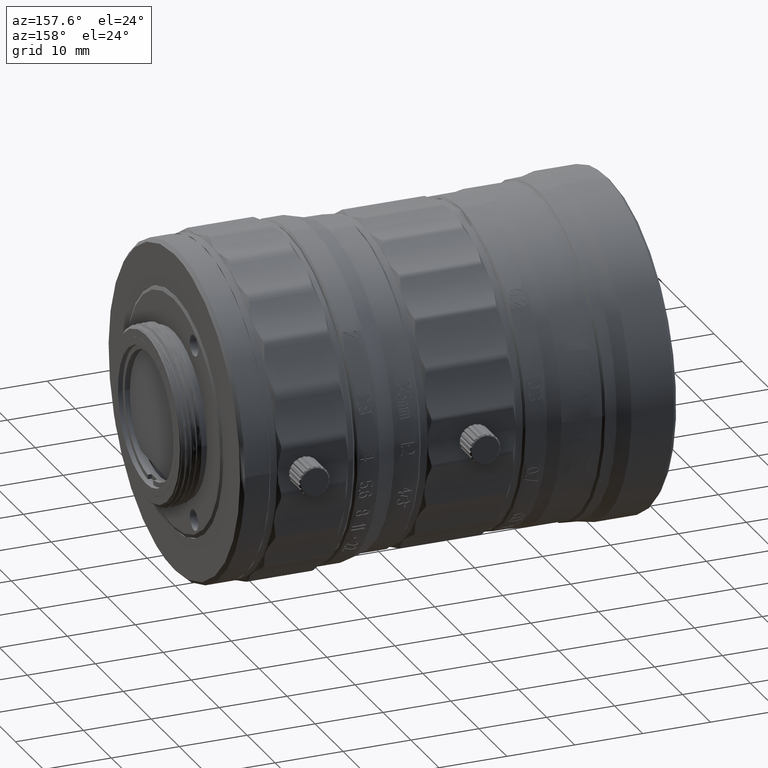
[diagram: clean part render]
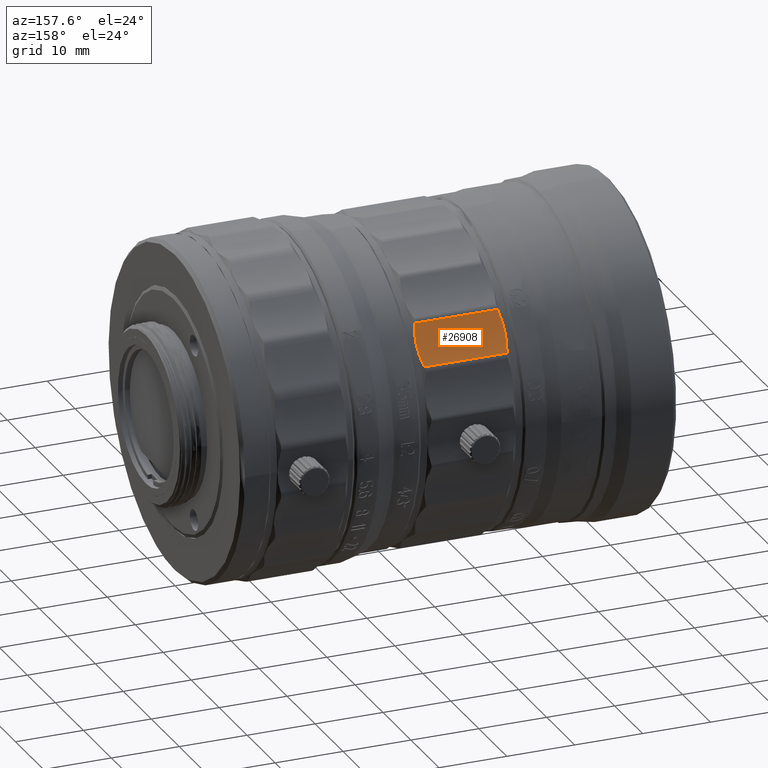
[diagram: same view with one face highlighted and labeled with its STEP entity id]
A machine part, auxiliary view. The second image highlights one B-rep face of the part: STEP entity #26908.
In plain terms, the highlighted face is a freeform B-spline surface patch.
Its self-contained STEP definition (entity closure, byte-faithful):
#601 = CARTESIAN_POINT ( 'NONE',  ( 32.35799999999999699, 20.88782473432192788, 10.52472505854079898 ) ) ;
#3166 = VERTEX_POINT ( 'NONE', #28104 ) ;
#3839 = VERTEX_POINT ( 'NONE', #39235 ) ;
#4133 = CARTESIAN_POINT ( 'NONE',  ( 32.27999999912915285, 18.96217986871655015, 12.92819533545363875 ) ) ;
#5063 = CARTESIAN_POINT ( 'NONE',  ( 31.84044977436625246, 20.88782473330395106, 10.52472506045610068 ) ) ;
#9650 = CARTESIAN_POINT ( 'NONE',  ( 19.20199999899999810, 18.31518440495041844, 13.73573487476383725 ) ) ;
#10352 = EDGE_CURVE ( 'NONE', #57605, #48072, #72905, .T. ) ;
#13287 = CARTESIAN_POINT ( 'NONE',  ( 19.41184998432520814, 19.96739235388819367, 11.57924250682428990 ) ) ;
#14435 = CARTESIAN_POINT ( 'NONE',  ( 19.71955022696664983, 17.42836954945205008, 15.59881388658400070 ) ) ;
#17559 = CARTESIAN_POINT ( 'NONE',  ( 19.71955022696664983, 17.42836954945205008, 15.59881388658400070 ) ) ;
#17933 = CARTESIAN_POINT ( 'NONE',  ( 32.12765398955224327, 18.01191065906387934, 14.46696549593744940 ) ) ;
#19355 = CARTESIAN_POINT ( 'NONE',  ( 19.28000000068425024, 18.96217987539804994, 12.92819532576628028 ) ) ;
#20206 = CARTESIAN_POINT ( 'NONE',  ( 19.55217010016460932, 20.45599780396038270, 10.99673998348509230 ) ) ;
#20916 = CARTESIAN_POINT ( 'NONE',  ( 32.35799999999999699, 18.31518440495041844, 13.73573487476383725 ) ) ;
#23638 = CARTESIAN_POINT ( 'NONE',  ( 19.37478238368088057, 18.20118416197270506, 14.13446032856284873 ) ) ;
#25725 = CARTESIAN_POINT ( 'NONE',  ( 32.24232252836721102, 18.39505020388180512, 13.79567306632089974 ) ) ;
#25798 = CARTESIAN_POINT ( 'NONE',  ( 32.26587094611898721, 19.33300917226131332, 12.39765279944299969 ) ) ;
#26645 = CARTESIAN_POINT ( 'NONE',  ( 32.27999999912915285, 18.96217986871655015, 12.92819533545363875 ) ) ;
#26908 = ADVANCED_FACE ( 'NONE', ( #34334 ), #40604, .T. ) ;
#27947 = CARTESIAN_POINT ( 'NONE',  ( 31.84044977337140025, 17.42836955153405043, 15.59881388355324994 ) ) ;
#28104 = CARTESIAN_POINT ( 'NONE',  ( 31.84044977337140025, 17.42836955153405043, 15.59881388355324994 ) ) ;
#28261 = CARTESIAN_POINT ( 'NONE',  ( 19.20199999899999810, 17.42836954870010402, 15.59881388831076521 ) ) ;
#28403 = CARTESIAN_POINT ( 'NONE',  ( 19.71955022572299754, 20.88782473638964987, 10.52472505585709861 ) ) ;
#28927 = B_SPLINE_CURVE_WITH_KNOTS ( 'NONE', 3,
 ( #26645, #64316, #25798, #39638, #33134, #31856, #44831, #52187, #37938, #5063 ),
 .UNSPECIFIED., .F., .F.,
 ( 4, 1, 1, 2, 2, 4 ),
 ( -1.000000000000000000, -0.7499999999999988898, -0.6249999999999994449, -0.5624999999999988898, -0.4999999999999984457, 0.0000000000000000000 ),
 .UNSPECIFIED. ) ;
#29299 = ORIENTED_EDGE ( 'NONE', *, *, #83591, .T. ) ;
#30128 = CARTESIAN_POINT ( 'NONE',  ( 19.28000000068425024, 18.96217987539804994, 12.92819532576628028 ) ) ;
#30920 = CARTESIAN_POINT ( 'NONE',  ( 31.84044977337140025, 17.42836955153405043, 15.59881388355324994 ) ) ;
#31856 = CARTESIAN_POINT ( 'NONE',  ( 32.18521761531910386, 19.80703734049991738, 11.77910631157181953 ) ) ;
#33134 = CARTESIAN_POINT ( 'NONE',  ( 32.20170150774536921, 19.72666425075745877, 11.88129272447387663 ) ) ;
#33745 = EDGE_CURVE ( 'NONE', #3839, #57605, #28927, .T. ) ;
#33855 = ORIENTED_EDGE ( 'NONE', *, *, #85070, .T. ) ;
#34334 = FACE_OUTER_BOUND ( 'NONE', #43336, .T. ) ;
#37938 = CARTESIAN_POINT ( 'NONE',  ( 31.98509594273166101, 20.53714750344587969, 10.89924084854876440 ) ) ;
#38001 = CARTESIAN_POINT ( 'NONE',  ( 19.40245177453923731, 19.92891396002919535, 11.62671761120856040 ) ) ;
#38007 = B_SPLINE_CURVE_WITH_KNOTS ( 'NONE', 1,
 ( #75523, #27947 ),
 .UNSPECIFIED., .F., .F.,
 ( 2, 2 ),
 ( -1.000000000000000000, 0.0000000000000000000 ),
 .UNSPECIFIED. ) ;
#38640 = CARTESIAN_POINT ( 'NONE',  ( 19.71955022572299754, 20.88782473638964987, 10.52472505585709861 ) ) ;
#39235 = CARTESIAN_POINT ( 'NONE',  ( 32.27999999912915285, 18.96217986871655015, 12.92819533545363875 ) ) ;
#39276 = CARTESIAN_POINT ( 'NONE',  ( 19.31767747063279472, 19.56249638352087317, 12.08334401402176006 ) ) ;
#39638 = CARTESIAN_POINT ( 'NONE',  ( 32.22466121505335934, 19.60689643991855746, 12.03510346051054292 ) ) ;
#40604 =( BOUNDED_SURFACE ( )  B_SPLINE_SURFACE ( 1, 3, ( 
 ( #601, #79767, #20916, #67207 ),
 ( #60728, #49003, #9650, #28261 ) ),
 .UNSPECIFIED., .F., .F., .F. ) 
 B_SPLINE_SURFACE_WITH_KNOTS ( ( 2, 2 ),
 ( 4, 4 ),
 ( 0.0000000000000000000, 1.000000000000000000 ),
 ( 0.0000000000000000000, 1.000000000000000000 ),
 .UNSPECIFIED. ) 
 GEOMETRIC_REPRESENTATION_ITEM ( )  RATIONAL_B_SPLINE_SURFACE ( (
 ( 1.000000000000000000, 0.9920960187195803082, 0.9920960187195803082, 1.000000000000000000),
 ( 1.000000000000000000, 0.9920960187195803082, 0.9920960187195803082, 1.000000000000000000) ) ) 
 REPRESENTATION_ITEM ( '' )  SURFACE ( )  );
#43336 = EDGE_LOOP ( 'NONE', ( #71067, #29299, #33855, #71473, #54021, #52676 ) ) ;
#43526 = CARTESIAN_POINT ( 'NONE',  ( 19.46606478400407525, 17.88534955719090647, 14.68471395446227135 ) ) ;
#44389 = CARTESIAN_POINT ( 'NONE',  ( 19.29412905288100788, 18.60379090887263231, 13.46721955044845664 ) ) ;
#44831 = CARTESIAN_POINT ( 'NONE',  ( 32.17609663863217406, 19.84874267650656421, 11.72662636873243258 ) ) ;
#45749 = CARTESIAN_POINT ( 'NONE',  ( 19.28000000222992938, 19.25360717919831188, 12.50074997838073187 ) ) ;
#45922 = CARTESIAN_POINT ( 'NONE',  ( 31.84044977436625246, 20.88782473330395106, 10.52472506045610068 ) ) ;
#46175 = CARTESIAN_POINT ( 'NONE',  ( 19.64722714024984995, 20.71248612344052376, 10.71198294867840950 ) ) ;
#48072 = VERTEX_POINT ( 'NONE', #28403 ) ;
#49003 = CARTESIAN_POINT ( 'NONE',  ( 19.20199999899999810, 19.47752323786790640, 12.03089692426025081 ) ) ;
#49985 = B_SPLINE_CURVE_WITH_KNOTS ( 'NONE', 3,
 ( #30128, #63872, #44389, #56546, #70800, #23638, #76434, #43526, #76855, #17559 ),
 .UNSPECIFIED., .F., .F.,
 ( 4, 1, 1, 2, 2, 4 ),
 ( -1.000000000000000000, -0.7500000000000017764, -0.6250000000000026645, -0.5625000000000023315, -0.5000000000000019984, 0.0000000000000000000 ),
 .UNSPECIFIED. ) ;
#51256 = CARTESIAN_POINT ( 'NONE',  ( 32.27999999677007281, 18.67075255960568470, 13.35564069174201762 ) ) ;
#52187 = CARTESIAN_POINT ( 'NONE',  ( 32.09393521499591628, 20.20386665170190810, 11.28407395383077194 ) ) ;
#52209 = B_SPLINE_CURVE_WITH_KNOTS ( 'NONE', 3,
 ( #58338, #46175, #20206, #72576, #52257, #13287, #38001, #39276, #45749, #84256 ),
 .UNSPECIFIED., .F., .F.,
 ( 4, 1, 1, 2, 2, 4 ),
 ( -1.000000000000000000, -0.7500000000000011102, -0.6250000000000009992, -0.5625000000000019984, -0.5000000000000028866, 0.0000000000000000000 ),
 .UNSPECIFIED. ) ;
#52257 = CARTESIAN_POINT ( 'NONE',  ( 19.43234600944775892, 20.04740829839150962, 11.48143879599591166 ) ) ;
#52559 = B_SPLINE_CURVE_WITH_KNOTS ( 'NONE', 3,
 ( #30920, #57344, #84976, #63383, #17933, #70735, #83256, #25725, #51256, #4133 ),
 .UNSPECIFIED., .F., .F.,
 ( 4, 1, 1, 2, 2, 4 ),
 ( -1.000000000000000000, -0.7499999999999988898, -0.6249999999999968914, -0.5624999999999973355, -0.4999999999999977796, 0.0000000000000000000 ),
 .UNSPECIFIED. ) ;
#52676 = ORIENTED_EDGE ( 'NONE', *, *, #33745, .T. ) ;
#54021 = ORIENTED_EDGE ( 'NONE', *, *, #76242, .T. ) ;
#56546 = CARTESIAN_POINT ( 'NONE',  ( 19.33533878394662864, 18.36636550318597827, 13.85462816241768280 ) ) ;
#57344 = CARTESIAN_POINT ( 'NONE',  ( 31.91277285875016645, 17.53862461787201354, 15.36718278282850569 ) ) ;
#57605 = VERTEX_POINT ( 'NONE', #45922 ) ;
#58338 = CARTESIAN_POINT ( 'NONE',  ( 19.71955022572299754, 20.88782473638964987, 10.52472505585709861 ) ) ;
#60728 = CARTESIAN_POINT ( 'NONE',  ( 19.20199999899999810, 20.88782473432192788, 10.52472505854079898 ) ) ;
#63321 = EDGE_CURVE ( 'NONE', #69061, #3166, #38007, .T. ) ;
#63383 = CARTESIAN_POINT ( 'NONE',  ( 32.09523150363253308, 17.91987972954893849, 14.63290719895099024 ) ) ;
#63730 = CARTESIAN_POINT ( 'NONE',  ( 31.84044977436625246, 20.88782473330395106, 10.52472506045610068 ) ) ;
#63872 = CARTESIAN_POINT ( 'NONE',  ( 19.28000000222992583, 18.81646622075532349, 13.14191800354367246 ) ) ;
#64316 = CARTESIAN_POINT ( 'NONE',  ( 32.27999999677008702, 19.10789352116296769, 12.71447266063367465 ) ) ;
#67207 = CARTESIAN_POINT ( 'NONE',  ( 32.35799999999999699, 17.42836954870010402, 15.59881388831076521 ) ) ;
#69061 = VERTEX_POINT ( 'NONE', #14435 ) ;
#70735 = CARTESIAN_POINT ( 'NONE',  ( 32.14815001467480471, 18.07372045910988945, 14.35674904548591968 ) ) ;
#70800 = CARTESIAN_POINT ( 'NONE',  ( 19.35829849125462587, 18.26694322302934381, 14.02231024262685821 ) ) ;
#71067 = ORIENTED_EDGE ( 'NONE', *, *, #10352, .T. ) ;
#71473 = ORIENTED_EDGE ( 'NONE', *, *, #63321, .T. ) ;
#72576 = CARTESIAN_POINT ( 'NONE',  ( 19.46476849536746911, 20.16825639892805100, 11.33514430865156086 ) ) ;
#72905 = B_SPLINE_CURVE_WITH_KNOTS ( 'NONE', 1,
 ( #63730, #38640 ),
 .UNSPECIFIED., .F., .F.,
 ( 2, 2 ),
 ( -1.000000000000000000, 0.0000000000000000000 ),
 .UNSPECIFIED. ) ;
#75523 = CARTESIAN_POINT ( 'NONE',  ( 19.71955022696664983, 17.42836954945205008, 15.59881388658400070 ) ) ;
#76242 = EDGE_CURVE ( 'NONE', #3166, #3839, #52559, .T. ) ;
#76434 = CARTESIAN_POINT ( 'NONE',  ( 19.38390336036782458, 18.16756863340542338, 14.19245580294309406 ) ) ;
#76855 = CARTESIAN_POINT ( 'NONE',  ( 19.57490405626835184, 17.64887968704392662, 15.13555167734623197 ) ) ;
#79767 = CARTESIAN_POINT ( 'NONE',  ( 32.35799999999999699, 19.47752323786790640, 12.03089692426025081 ) ) ;
#83256 = CARTESIAN_POINT ( 'NONE',  ( 32.15754822446076844, 18.10385605256906416, 14.30358591396076484 ) ) ;
#83516 = VERTEX_POINT ( 'NONE', #19355 ) ;
#83591 = EDGE_CURVE ( 'NONE', #48072, #83516, #52209, .T. ) ;
#84256 = CARTESIAN_POINT ( 'NONE',  ( 19.28000000068425024, 18.96217987539804994, 12.92819532576628028 ) ) ;
#84976 = CARTESIAN_POINT ( 'NONE',  ( 32.00782989883537510, 17.70999176430311550, 15.02439110589121007 ) ) ;
#85070 = EDGE_CURVE ( 'NONE', #83516, #69061, #49985, .T. ) ;